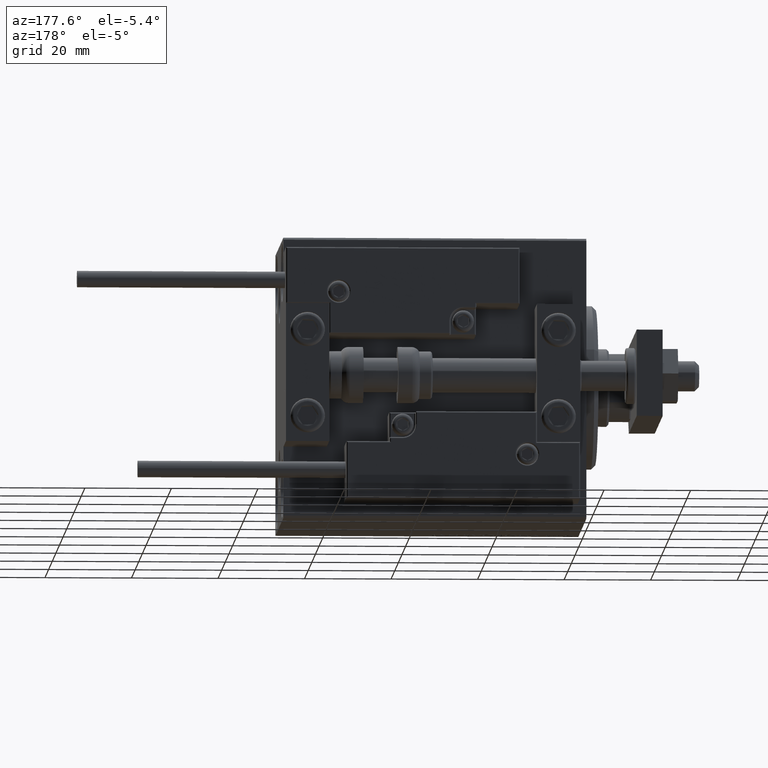
[diagram: clean part render]
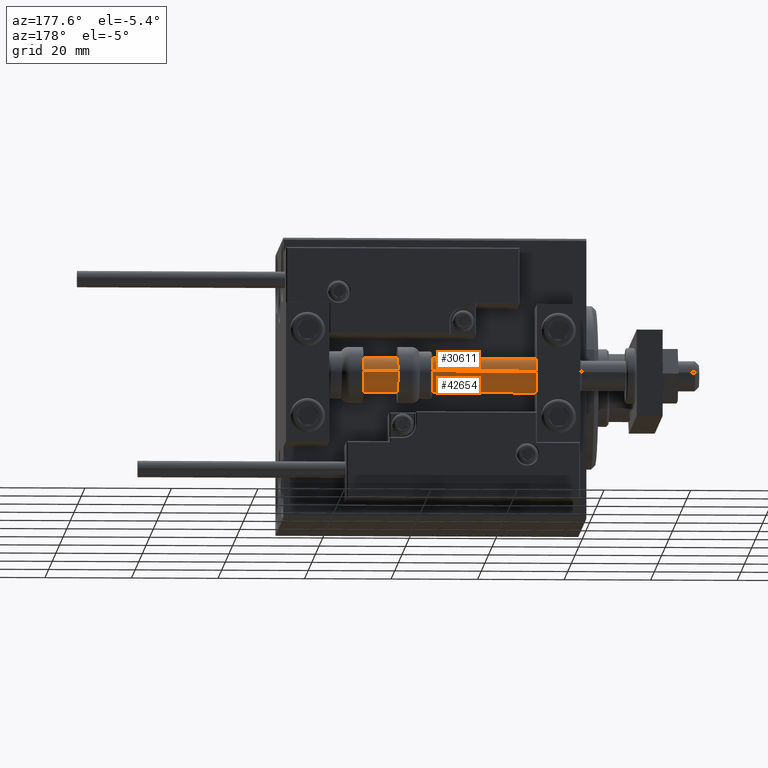
[diagram: same view with one multi-face feature highlighted, each face labeled with its STEP entity id]
A machine part, auxiliary view. The highlighted faces form ONE feature: a constant-radius fillet chain: 2 tangent blend faces with common blend radius 4 mm. The faces share edges in the B-rep.
Their STEP definitions:
[1] entity #42654 (Cylinder):
#288 = EDGE_CURVE ( 'NONE', #3168, #4465, #38459, .T. ) ;
#564 = EDGE_CURVE ( 'NONE', #30481, #35011, #25542, .T. ) ;
#709 = AXIS2_PLACEMENT_3D ( 'NONE', #49344, #37194, #37696 ) ;
#3168 = VERTEX_POINT ( 'NONE', #38705 ) ;
#4235 = ORIENTED_EDGE ( 'NONE', *, *, #29873, .T. ) ;
#4465 = VERTEX_POINT ( 'NONE', #21681 ) ;
#4948 = ORIENTED_EDGE ( 'NONE', *, *, #564, .T. ) ;
#8798 = CARTESIAN_POINT ( 'NONE',  ( -4.000000000000000000, 0.000000000000000000, 70.00000000000000000 ) ) ;
#10269 = LINE ( 'NONE', #43990, #46771 ) ;
#10919 = DIRECTION ( 'NONE',  ( 0.000000000000000000, 0.000000000000000000, 1.000000000000000000 ) ) ;
#13429 = DIRECTION ( 'NONE',  ( 1.000000000000000000, 0.000000000000000000, 0.000000000000000000 ) ) ;
#14760 = VECTOR ( 'NONE', #24278, 1000.000000000000000 ) ;
#16588 = AXIS2_PLACEMENT_3D ( 'NONE', #21137, #10919, #36615 ) ;
#19340 = CARTESIAN_POINT ( 'NONE',  ( -4.000000000000000000, 0.000000000000000000, 2.000000000000029310 ) ) ;
#21137 = CARTESIAN_POINT ( 'NONE',  ( 0.000000000000000000, 0.000000000000000000, 70.00000000000000000 ) ) ;
#21681 = CARTESIAN_POINT ( 'NONE',  ( 4.000000000000000000, 4.898587196589412829E-16, 70.00000000000000000 ) ) ;
#24278 = DIRECTION ( 'NONE',  ( -0.000000000000000000, -0.000000000000000000, -1.000000000000000000 ) ) ;
#25090 = DIRECTION ( 'NONE',  ( -0.000000000000000000, -0.000000000000000000, 1.000000000000000000 ) ) ;
#25496 = DIRECTION ( 'NONE',  ( -0.000000000000000000, -0.000000000000000000, -1.000000000000000000 ) ) ;
#25542 = CIRCLE ( 'NONE', #39283, 4.000000000000000000 ) ;
#29873 = EDGE_CURVE ( 'NONE', #3168, #30481, #43522, .T. ) ;
#30481 = VERTEX_POINT ( 'NONE', #19340 ) ;
#31142 = ORIENTED_EDGE ( 'NONE', *, *, #41234, .F. ) ;
#35011 = VERTEX_POINT ( 'NONE', #40626 ) ;
#36615 = DIRECTION ( 'NONE',  ( 1.000000000000000000, 0.000000000000000000, 0.000000000000000000 ) ) ;
#36939 = FACE_OUTER_BOUND ( 'NONE', #40367, .T. ) ;
#37194 = DIRECTION ( 'NONE',  ( -0.000000000000000000, -0.000000000000000000, -1.000000000000000000 ) ) ;
#37696 = DIRECTION ( 'NONE',  ( -1.000000000000000000, 0.000000000000000000, 0.000000000000000000 ) ) ;
#38459 = CIRCLE ( 'NONE', #16588, 4.000000000000000000 ) ;
#38705 = CARTESIAN_POINT ( 'NONE',  ( -4.000000000000000000, 0.000000000000000000, 70.00000000000000000 ) ) ;
#39283 = AXIS2_PLACEMENT_3D ( 'NONE', #48135, #25090, #13429 ) ;
#40367 = EDGE_LOOP ( 'NONE', ( #31142, #47529, #4235, #4948 ) ) ;
#40626 = CARTESIAN_POINT ( 'NONE',  ( 4.000000000000000000, 4.898587196589412829E-16, 2.000000000000029310 ) ) ;
#40989 = CYLINDRICAL_SURFACE ( 'NONE', #709, 4.000000000000000000 ) ;
#41234 = EDGE_CURVE ( 'NONE', #4465, #35011, #10269, .T. ) ;
#42654 = ADVANCED_FACE ( 'NONE', ( #36939 ), #40989, .T. ) ;
#43522 = LINE ( 'NONE', #8798, #14760 ) ;
#43990 = CARTESIAN_POINT ( 'NONE',  ( 4.000000000000000000, 4.898587196589412829E-16, 70.00000000000000000 ) ) ;
#46771 = VECTOR ( 'NONE', #25496, 1000.000000000000000 ) ;
#47529 = ORIENTED_EDGE ( 'NONE', *, *, #288, .F. ) ;
#48135 = CARTESIAN_POINT ( 'NONE',  ( 0.000000000000000000, 0.000000000000000000, 2.000000000000029310 ) ) ;
#49344 = CARTESIAN_POINT ( 'NONE',  ( 0.000000000000000000, 0.000000000000000000, 70.00000000000000000 ) ) ;
[2] entity #30611 (Cylinder):
#3168 = VERTEX_POINT ( 'NONE', #38705 ) ;
#3455 = ORIENTED_EDGE ( 'NONE', *, *, #21262, .F. ) ;
#3675 = ORIENTED_EDGE ( 'NONE', *, *, #41234, .T. ) ;
#4465 = VERTEX_POINT ( 'NONE', #21681 ) ;
#8798 = CARTESIAN_POINT ( 'NONE',  ( -4.000000000000000000, 0.000000000000000000, 70.00000000000000000 ) ) ;
#10269 = LINE ( 'NONE', #43990, #46771 ) ;
#10625 = AXIS2_PLACEMENT_3D ( 'NONE', #41128, #32788, #14264 ) ;
#14264 = DIRECTION ( 'NONE',  ( 1.000000000000000000, 0.000000000000000000, 0.000000000000000000 ) ) ;
#14760 = VECTOR ( 'NONE', #24278, 1000.000000000000000 ) ;
#15160 = DIRECTION ( 'NONE',  ( -1.000000000000000000, 0.000000000000000000, 0.000000000000000000 ) ) ;
#15766 = CARTESIAN_POINT ( 'NONE',  ( 0.000000000000000000, 0.000000000000000000, 70.00000000000000000 ) ) ;
#18220 = CARTESIAN_POINT ( 'NONE',  ( 0.000000000000000000, 0.000000000000000000, 70.00000000000000000 ) ) ;
#19321 = DIRECTION ( 'NONE',  ( 1.000000000000000000, 0.000000000000000000, 0.000000000000000000 ) ) ;
#19340 = CARTESIAN_POINT ( 'NONE',  ( -4.000000000000000000, 0.000000000000000000, 2.000000000000029310 ) ) ;
#21262 = EDGE_CURVE ( 'NONE', #4465, #3168, #34776, .T. ) ;
#21681 = CARTESIAN_POINT ( 'NONE',  ( 4.000000000000000000, 4.898587196589412829E-16, 70.00000000000000000 ) ) ;
#22653 = ORIENTED_EDGE ( 'NONE', *, *, #29873, .F. ) ;
#22757 = CIRCLE ( 'NONE', #10625, 4.000000000000000000 ) ;
#24278 = DIRECTION ( 'NONE',  ( -0.000000000000000000, -0.000000000000000000, -1.000000000000000000 ) ) ;
#25496 = DIRECTION ( 'NONE',  ( -0.000000000000000000, -0.000000000000000000, -1.000000000000000000 ) ) ;
#25964 = EDGE_CURVE ( 'NONE', #35011, #30481, #22757, .T. ) ;
#26463 = ORIENTED_EDGE ( 'NONE', *, *, #25964, .T. ) ;
#29873 = EDGE_CURVE ( 'NONE', #3168, #30481, #43522, .T. ) ;
#30481 = VERTEX_POINT ( 'NONE', #19340 ) ;
#30611 = ADVANCED_FACE ( 'NONE', ( #41783 ), #49387, .T. ) ;
#31248 = DIRECTION ( 'NONE',  ( 0.000000000000000000, 0.000000000000000000, 1.000000000000000000 ) ) ;
#32788 = DIRECTION ( 'NONE',  ( -0.000000000000000000, -0.000000000000000000, 1.000000000000000000 ) ) ;
#34776 = CIRCLE ( 'NONE', #44448, 4.000000000000000000 ) ;
#35011 = VERTEX_POINT ( 'NONE', #40626 ) ;
#38705 = CARTESIAN_POINT ( 'NONE',  ( -4.000000000000000000, 0.000000000000000000, 70.00000000000000000 ) ) ;
#40626 = CARTESIAN_POINT ( 'NONE',  ( 4.000000000000000000, 4.898587196589412829E-16, 2.000000000000029310 ) ) ;
#41128 = CARTESIAN_POINT ( 'NONE',  ( 0.000000000000000000, 0.000000000000000000, 2.000000000000029310 ) ) ;
#41234 = EDGE_CURVE ( 'NONE', #4465, #35011, #10269, .T. ) ;
#41783 = FACE_OUTER_BOUND ( 'NONE', #45605, .T. ) ;
#43522 = LINE ( 'NONE', #8798, #14760 ) ;
#43990 = CARTESIAN_POINT ( 'NONE',  ( 4.000000000000000000, 4.898587196589412829E-16, 70.00000000000000000 ) ) ;
#44448 = AXIS2_PLACEMENT_3D ( 'NONE', #15766, #31248, #19321 ) ;
#45605 = EDGE_LOOP ( 'NONE', ( #3455, #3675, #26463, #22653 ) ) ;
#46771 = VECTOR ( 'NONE', #25496, 1000.000000000000000 ) ;
#47148 = AXIS2_PLACEMENT_3D ( 'NONE', #18220, #49891, #15160 ) ;
#49387 = CYLINDRICAL_SURFACE ( 'NONE', #47148, 4.000000000000000000 ) ;
#49891 = DIRECTION ( 'NONE',  ( -0.000000000000000000, -0.000000000000000000, -1.000000000000000000 ) ) ;